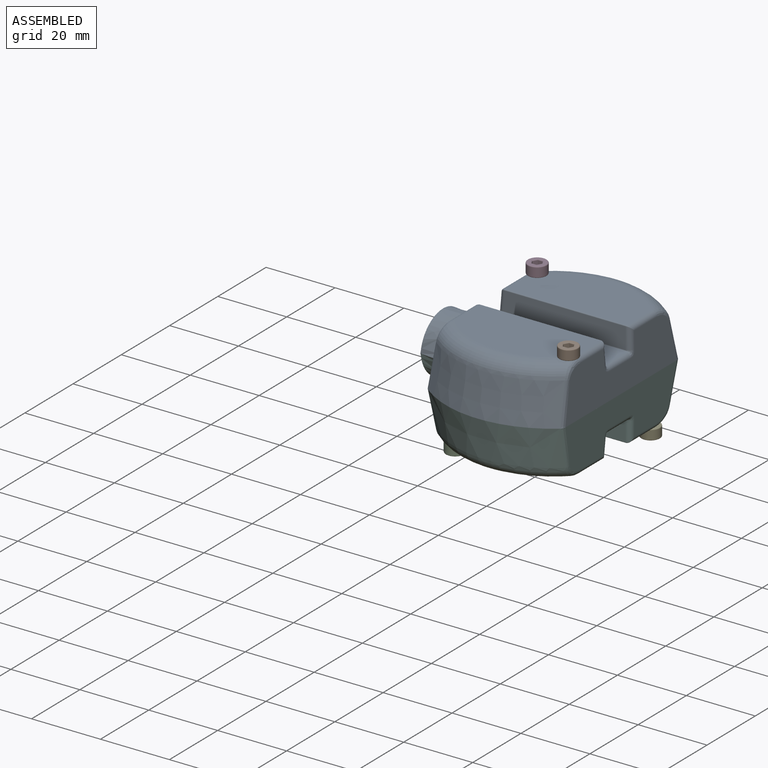
[diagram: assembled view]
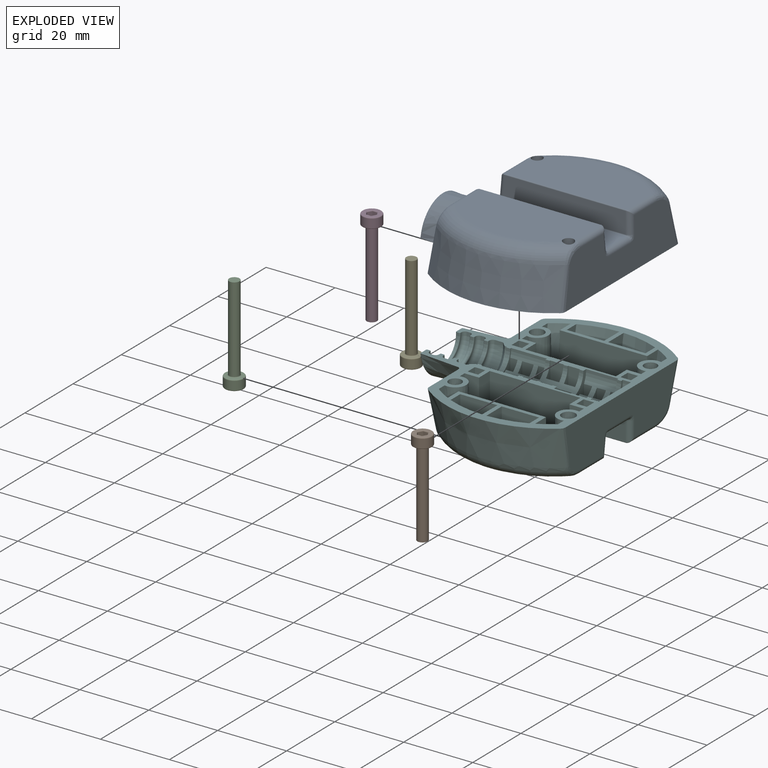
[diagram: exploded view]
GUIDED TOUR — MATED ASSEMBLY (Onshape document 58caafc463b9290f88973a70, AutoMate assembly 58caafc463b9290f88973a70_11cbbfecacfa5ac5eac147a0_29357feba0be54985f3b2f75_default)

This assembly has 6 components, labeled P0..P5 below (a component is one placed occurrence of a part; the same part can appear more than once), held together by 9 mates. A mate is a constraint between two components; its type names the relative motion it leaves free:
  FASTENED — locks the two components together rigidly (no relative motion),
  PLANAR — leaves sliding in the plane through the listed point (normal = the listed direction) and rotation about that normal free,
  SLIDER — leaves translation along the listed axis free.
Axis/direction vectors are unit vectors and 'through' points are millimeter coordinates, both in the assembly's world frame.

MATES
  1. PLANAR "Planar 2": P3 <-> P0, direction (0.000, 0.000, -1.000) through (-61.48, 14.55, 29.47) mm
  2. SLIDER "Slider 4": P5 <-> P2, axis (0.000, 0.000, -1.000) through (-61.48, -19.45, -1.38) mm
  3. PLANAR "Planar 1": P1 <-> P0, direction (0.000, 0.000, -1.000) through (-28.58, -19.45, 29.47) mm
  4. PLANAR "Planar 3": P4 <-> P5, direction (0.000, 0.000, 1.000) through (-28.58, 14.55, -1.38) mm
  5. SLIDER "Slider 3": P5 <-> P4, axis (0.000, 0.000, -1.000) through (-28.58, 14.55, -1.38) mm
  6. PLANAR "Planar 4": P2 <-> P5, direction (0.000, 0.000, 1.000) through (-61.48, -19.45, -1.38) mm
  7. SLIDER "Slider 1": P0 <-> P3, axis (0.000, 0.000, 1.000) through (-61.48, 14.55, 29.47) mm
  8. FASTENED "Fastened 1": P5 <-> P0, direction (0.000, 0.000, -1.000) through (-44.40, 25.99, 14.04) mm
  9. SLIDER "Slider 2": P1 <-> P0, axis (0.000, 0.000, -1.000) through (-28.58, -19.45, 29.47) mm

ASSEMBLY ORDER
  1. P5 — the base component [order verified]
  2. P0 [order verified]
  3. P2 [order verified]
  4. P3 [order verified]
  5. P4 [order verified]
  6. P1 [order verified]
Order-tag legend:
  [order verified] — this step's position reverses a verified removal order: the component was checked to insert without passing through the ones already placed.

Of the 6 components, 4 carry the full construction recipe — the FeatureScript program that regenerates the part's solid from scratch; the rest are supplied as boundary geometry only.
Each toured component is shown spotlighted twice — in the assembled view, then in the exploded view, where a leader line traces a displaced component back to its assembled socket (saturated green if recipe-attached, orange if geometry-only; every other component desaturated gray) — followed by its recipe or geometry summary and the mates that hold it.
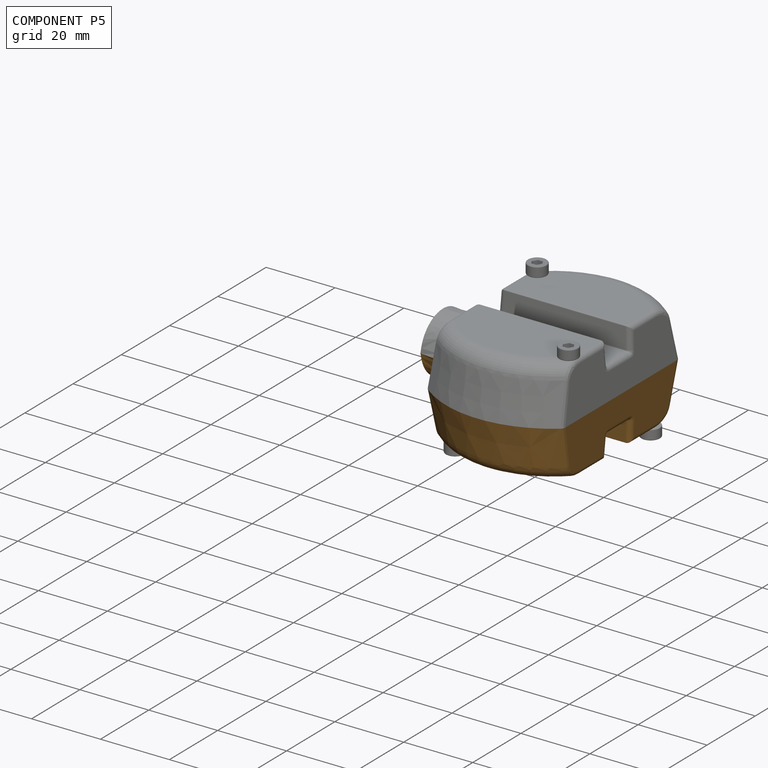
[diagram: component P5 — assembled]
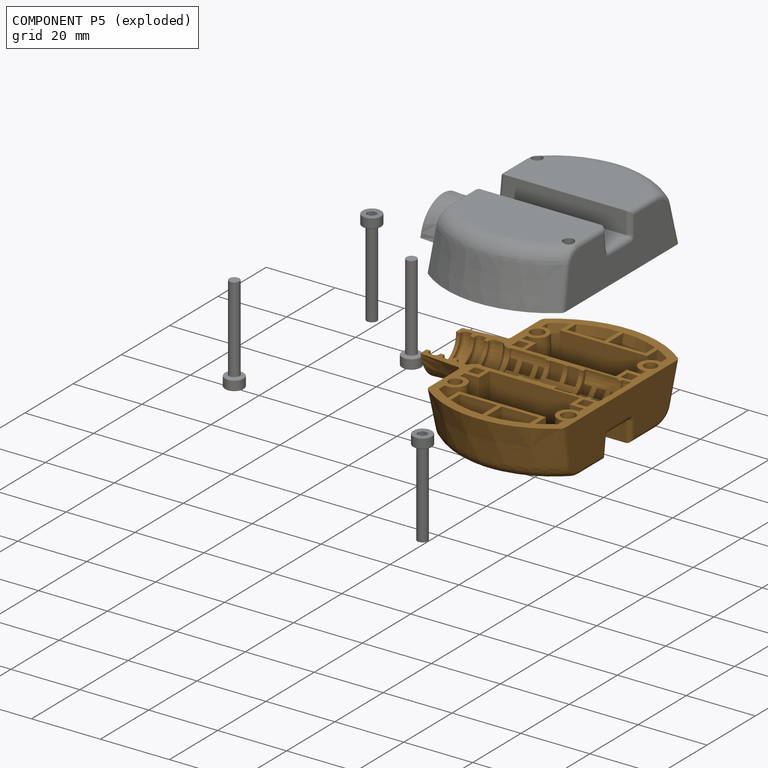
[diagram: component P5 — exploded]
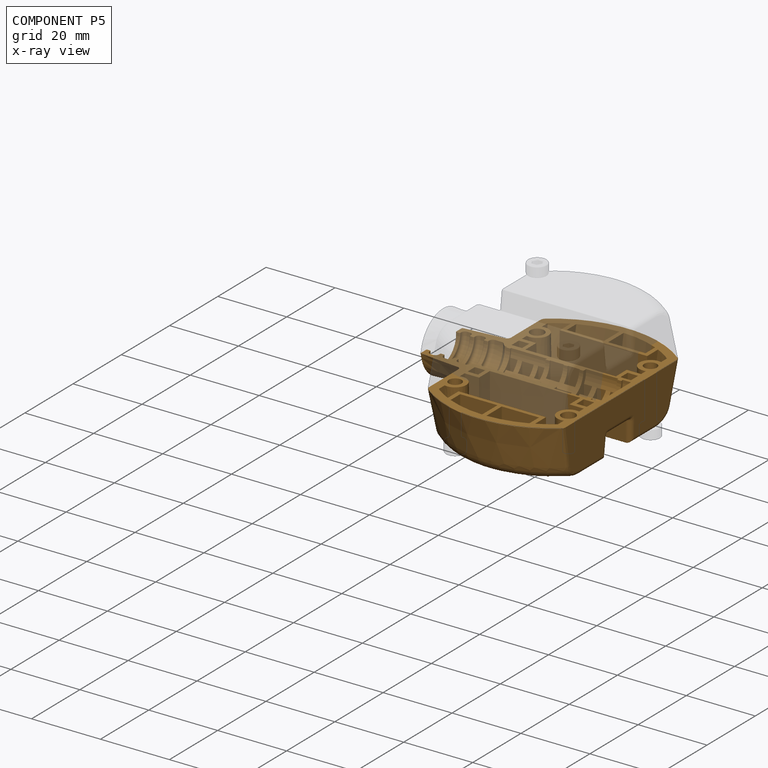
[diagram: component P5 — x-ray view]
COMPONENT P5 — geometry summary (no construction recipe available for this part):
  bounding box: 62.4 x 55.9 x 35.9 mm
  B-rep topology: 1 solid, 333 faces, 1830 edges
  volume: 13388 mm^3 (11% of its bounding box)
Held by: SLIDER mate "Slider 4" to P2; PLANAR mate "Planar 3" to P4; SLIDER mate "Slider 3" to P4; PLANAR mate "Planar 4" to P2; FASTENED mate "Fastened 1" to P0.
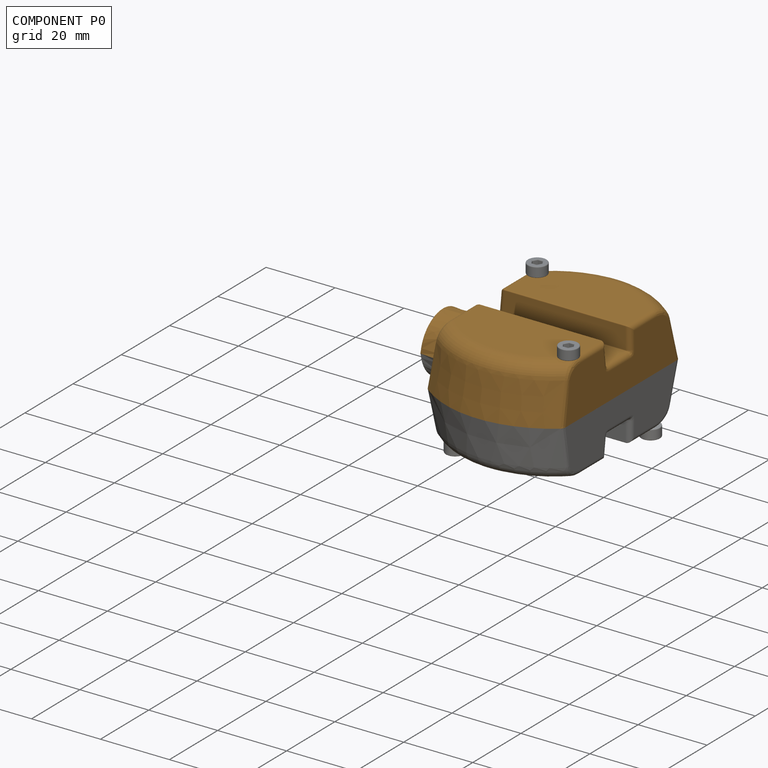
[diagram: component P0 — assembled]
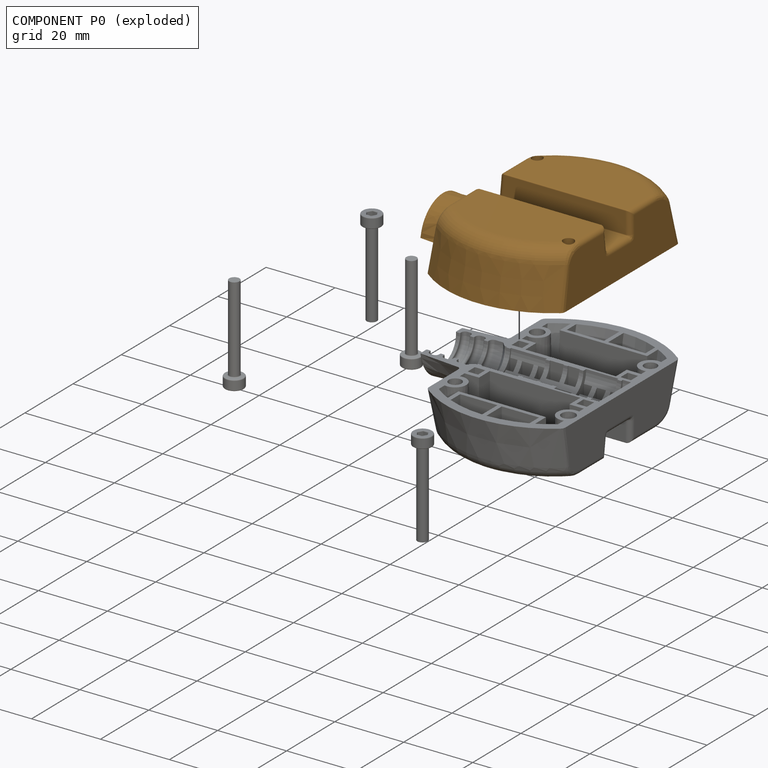
[diagram: component P0 — exploded]
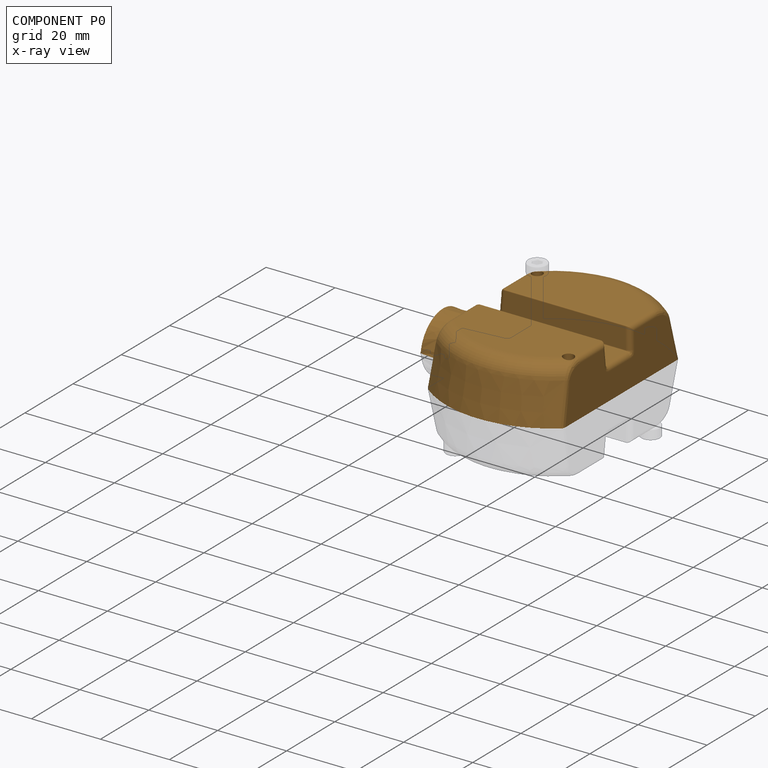
[diagram: component P0 — x-ray view]
COMPONENT P0 — geometry summary (no construction recipe available for this part):
  bounding box: 62.4 x 55.9 x 35.9 mm
  B-rep topology: 1 solid, 333 faces, 1830 edges
  volume: 13388 mm^3 (11% of its bounding box)
Held by: PLANAR mate "Planar 2" to P3; PLANAR mate "Planar 1" to P1; SLIDER mate "Slider 1" to P3; FASTENED mate "Fastened 1" to P5; SLIDER mate "Slider 2" to P1.
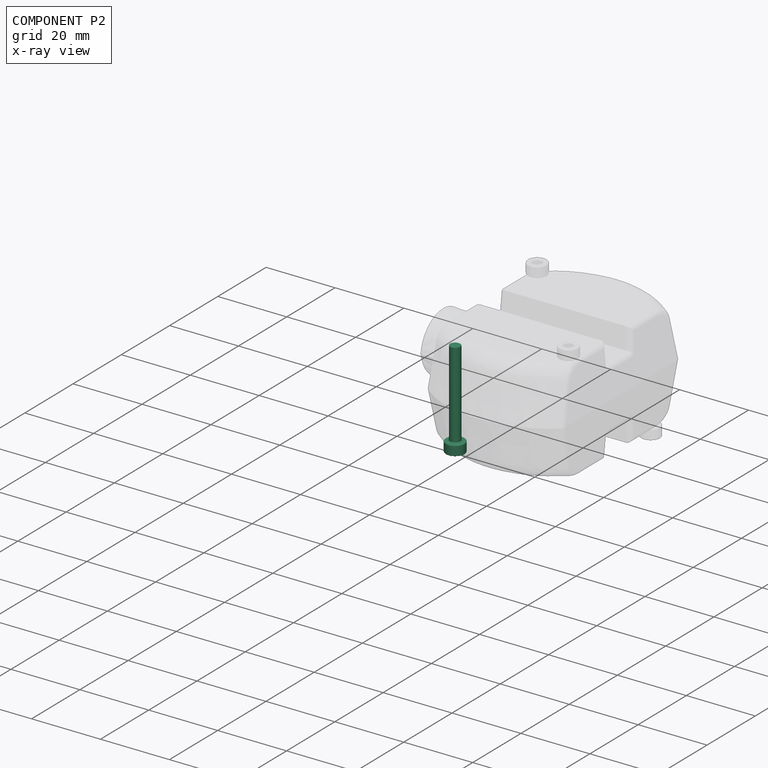
[diagram: component P2 — x-ray view]
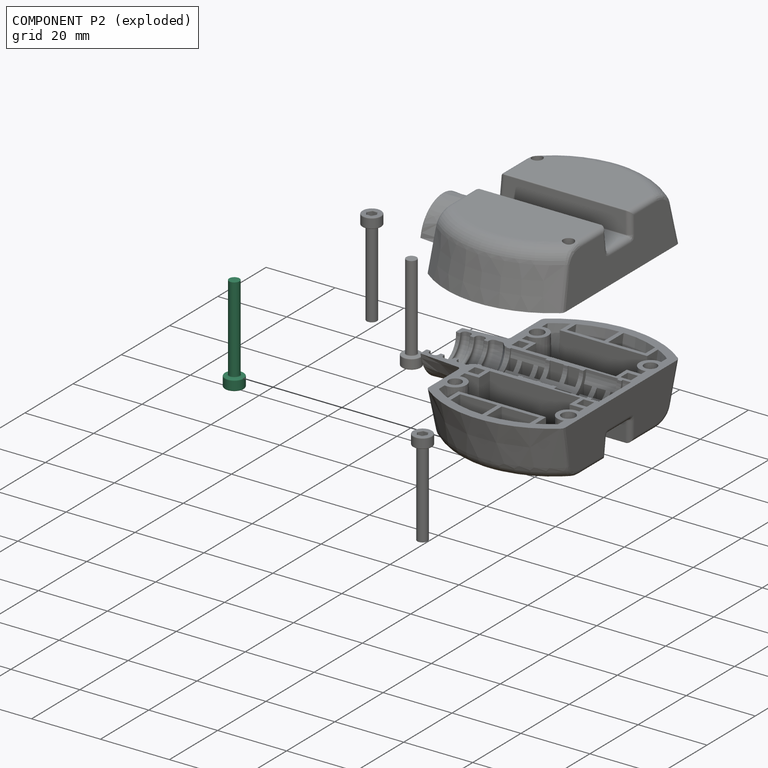
[diagram: component P2 — exploded]
COMPONENT P2 — same part as P1 (CADFS 00624775); its construction recipe is shown at P1.
Held by: SLIDER mate "Slider 4" to P5; PLANAR mate "Planar 4" to P5.
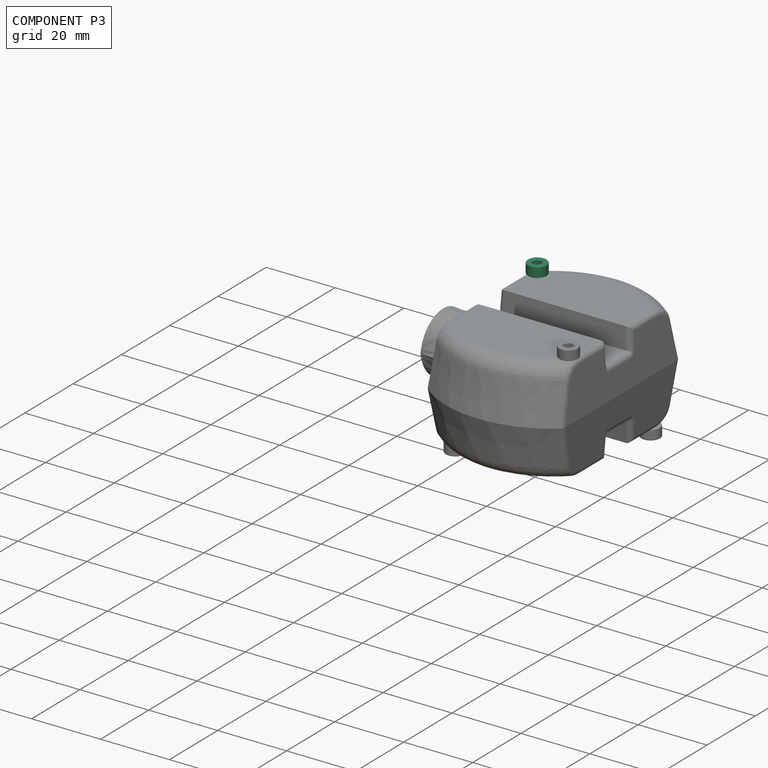
[diagram: component P3 — assembled]
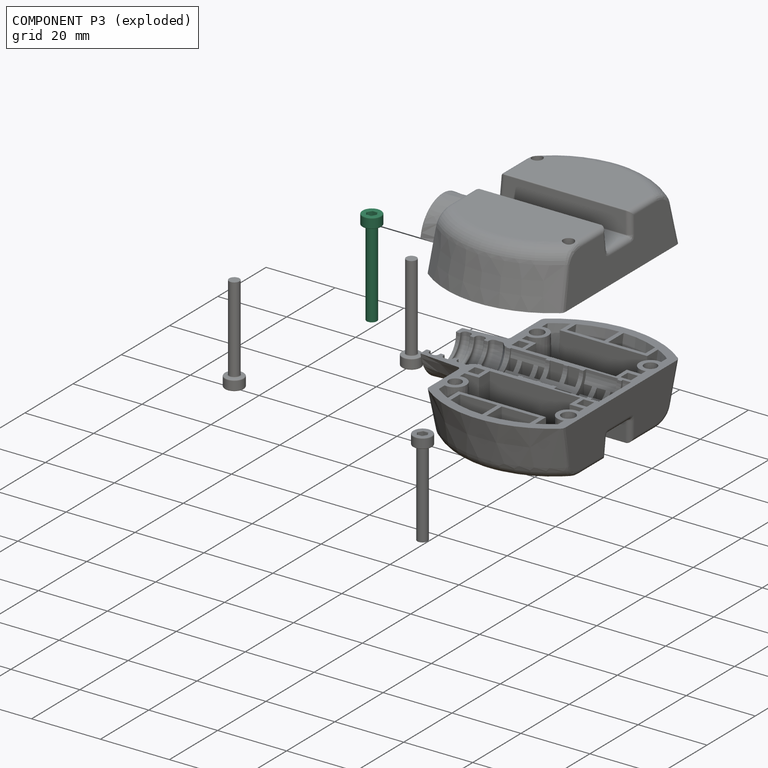
[diagram: component P3 — exploded]
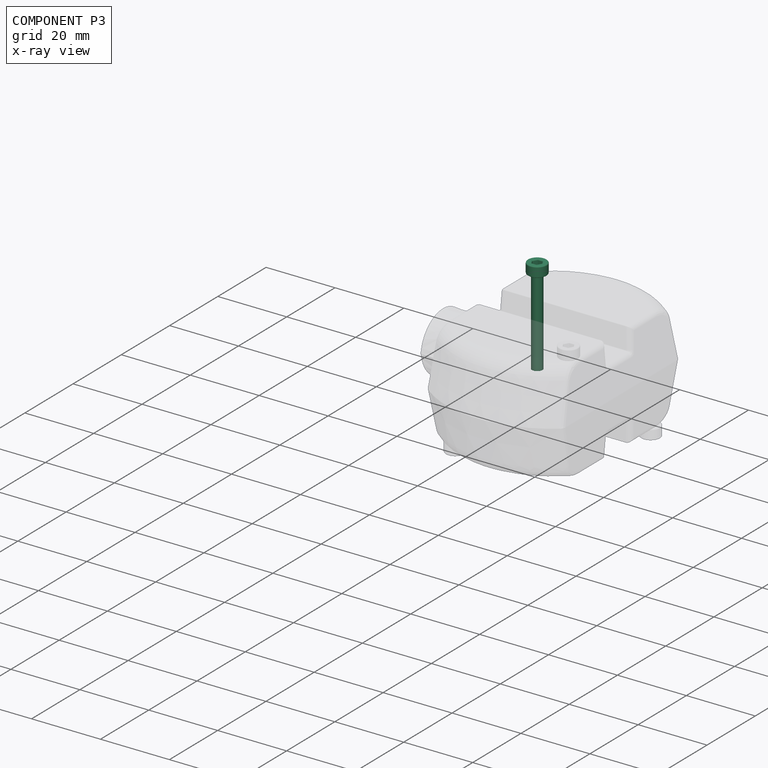
[diagram: component P3 — x-ray view]
COMPONENT P3 — same part as P1 (CADFS 00624775); its construction recipe is shown at P1.
Held by: PLANAR mate "Planar 2" to P0; SLIDER mate "Slider 1" to P0.
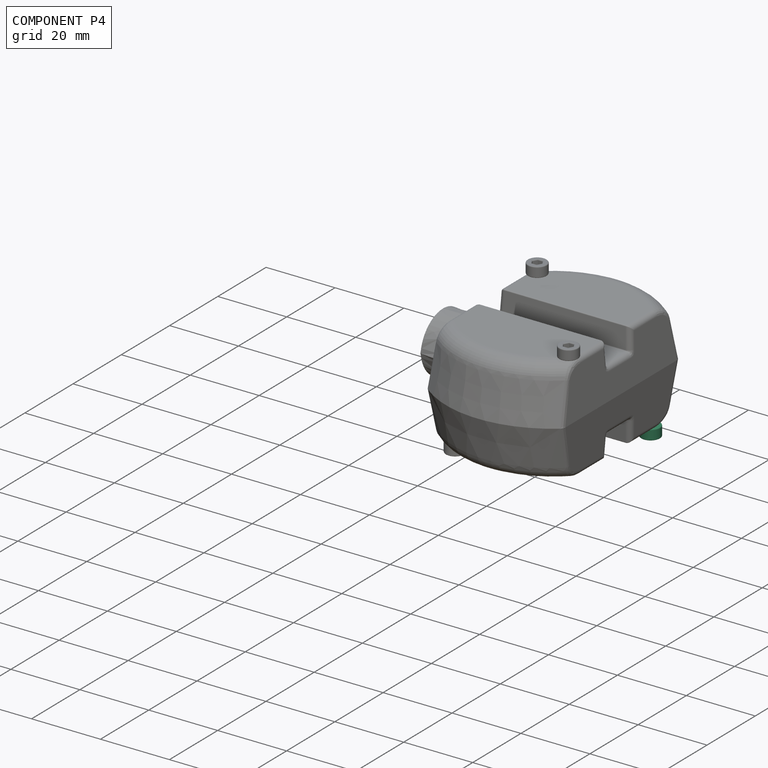
[diagram: component P4 — assembled]
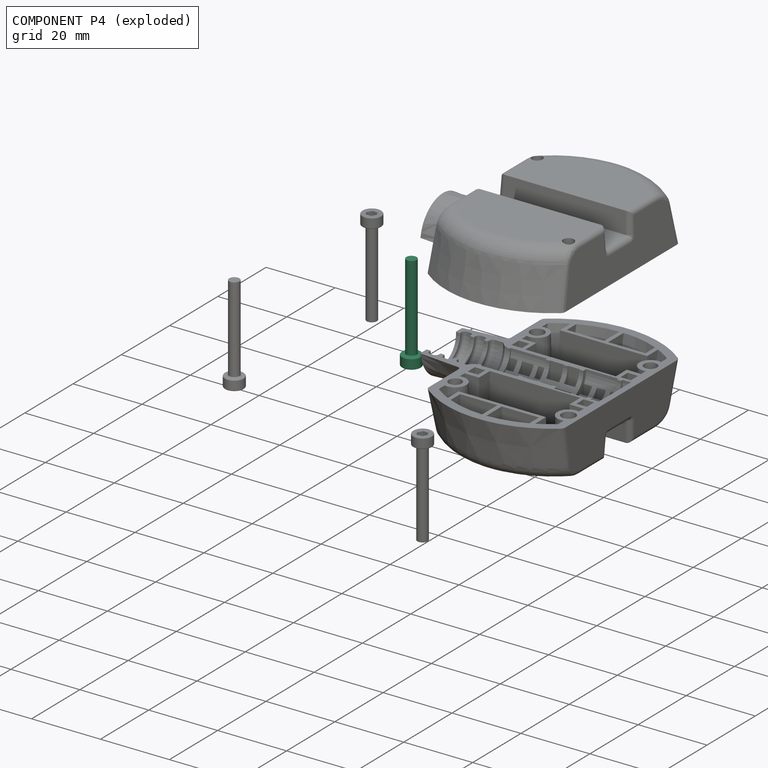
[diagram: component P4 — exploded]
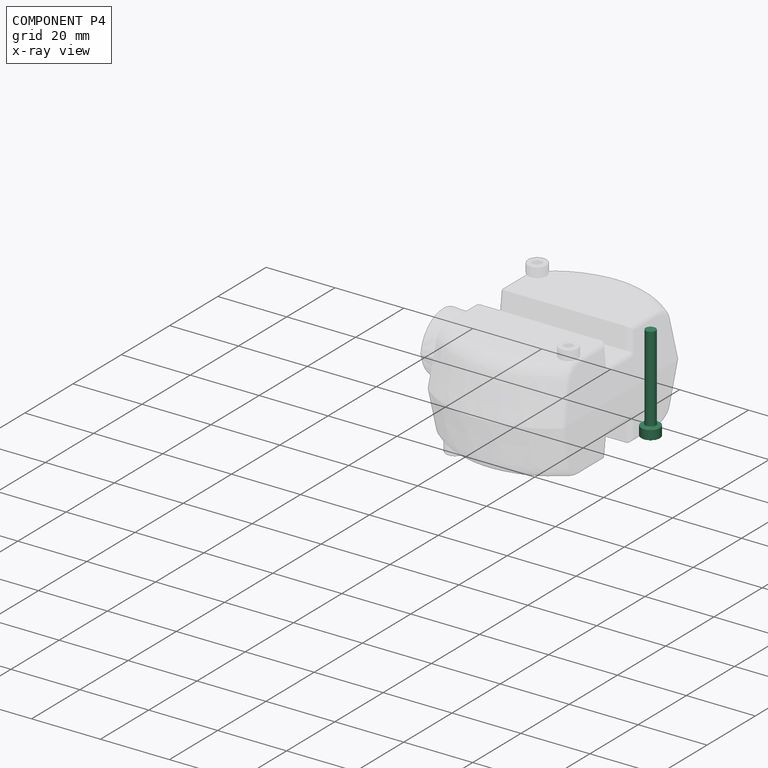
[diagram: component P4 — x-ray view]
COMPONENT P4 — same part as P1 (CADFS 00624775); its construction recipe is shown at P1.
Held by: PLANAR mate "Planar 3" to P5; SLIDER mate "Slider 3" to P5.
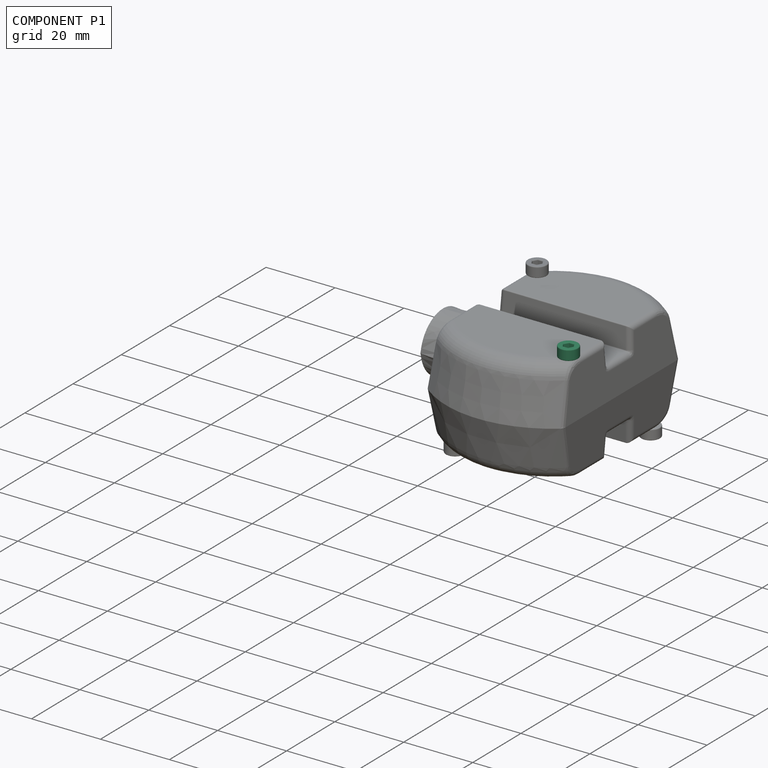
[diagram: component P1 — assembled]
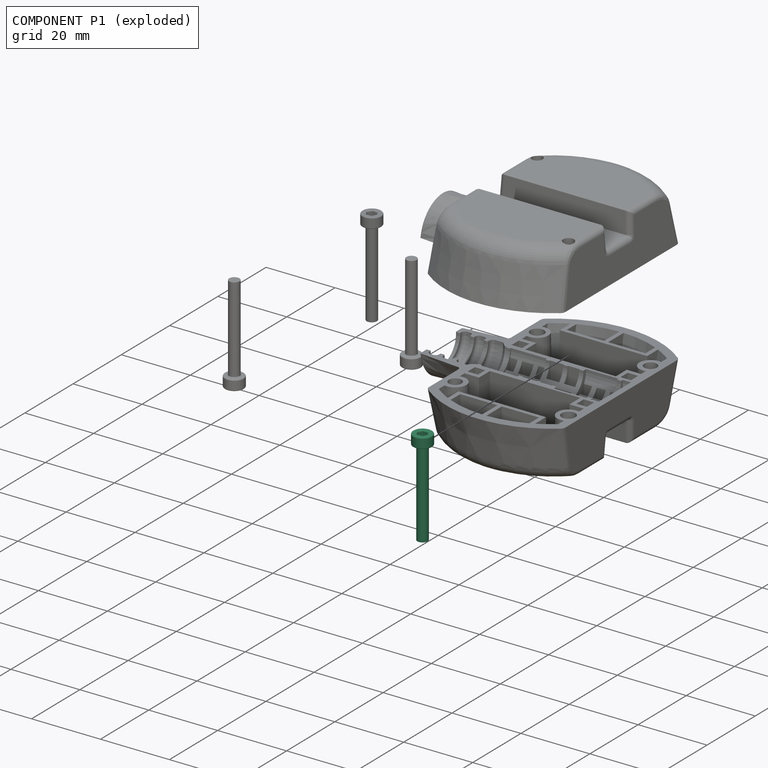
[diagram: component P1 — exploded]
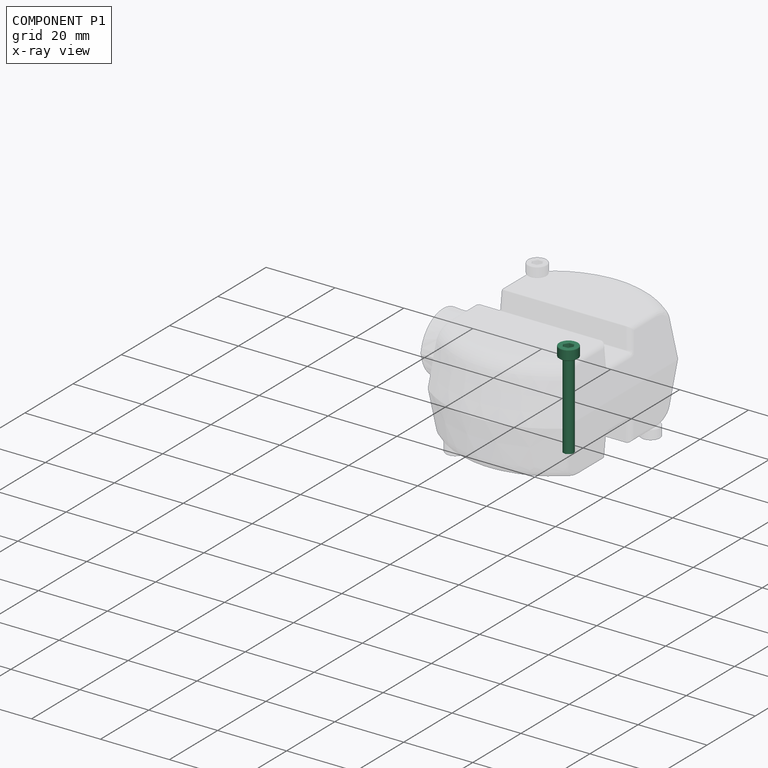
[diagram: component P1 — x-ray view]
COMPONENT P1 — recipe-attached (CADFS 00624775, mesh-verified: the recipe's output STEP matches this component's geometry to below the mesh-comparison resolution (tessellation chordal tolerance ~0.0436 mm)).
Held by: PLANAR mate "Planar 1" to P0; SLIDER mate "Slider 2" to P0.
Construction recipe (FeatureScript — the CAD program that rebuilds this solid; sketch coordinates are in the units given by the * unit suffixes, e.g. mm):

FeatureScript 1511;
import(path : "onshape/std/geometry.fs", version : "1511.0");
import(path : "onshape/std/common.fs", version : "1511.0");
const mm = millimeter;
const VERTEX = EntityType.VERTEX;
const EDGE = EntityType.EDGE;
const FACE = EntityType.FACE;
const BODY = EntityType.BODY;
function v(x, y){return vector(x, y);}
function OD(order){return orderDisambiguation(order);}
function OSD(set){return originalSetDisambiguation(set);}
function TD(topology){return topologyDisambiguation(topology);}
function TDD(query){return trueDependencyDisambiguation(query);}
function sQuery(a, b, c) {return sketchEntityQuery(a, b, c);}

annotation { "Feature Type Name" : "Feature", "Feature Type Description" : "" }
export const myFeature = defineFeature(function(context is Context, id is Id, definition is map)
    precondition{}
    {
        {
            var Q0;
            Q0=qCreatedBy(makeId("Top.planeOp"),FACE);
            var sketch = newSketch(context, id + "F0", { "sketchPlane" : qUnion([Q0])});
            skCircle(sketch, "E0", {"center": v(0, 0) * mm, "radius": 2.75 * mm});
            skSolve(sketch);
        }
        {
            var Q0;
            Q0 = qSketchRegion(id + "F0", true);
            extrude(context, id + "F1", {"entities" : qUnion([Q0]), "oppositeDirection" : true, "depth" : 3 * mm, "offsetDistance" : 25 * mm});
        }
        {
            var Q0;
            Q0=makeQuery(id+"F1.opExtrude","CAP_FACE",FACE,{"disambiguationData":[OSD([sQuery(id+"F0.wireOp",EDGE,"E0")])],"isStart":false});
            var sketch = newSketch(context, id + "F2", { "sketchPlane" : qUnion([Q0])});
            skCircle(sketch, "E1", {"center": v(0, 0) * mm, "radius": 1.5 * mm});
            skSolve(sketch);
        }
        {
            var Q0;
            Q0 = qSketchRegion(id + "F2", true);
            extrude(context, id + "F3", {"entities" : qUnion([Q0]), "operationType" : NewBodyOperationType.ADD, "depth" : 25 * mm, "offsetDistance" : 25 * mm});
        }
        {
            var Q0;
            Q0=makeQuery(id+"F1.opExtrude","CAP_FACE",FACE,{"disambiguationData":[OSD([sQuery(id+"F0.wireOp",EDGE,"E0")])],"isStart":true});
            var sketch = newSketch(context, id + "F4", { "sketchPlane" : qUnion([Q0])});
            skCircle(sketch, "E2.cCircle", {"center": v(0, 0) * mm, "radius": 1.25 * mm, "construction": true});
            skLineSegment(sketch, "E2.0", {"start": v(-0.72, 1.25) * mm, "end": v(0.72, 1.25) * mm});
            skLineSegment(sketch, "E2.1", {"start": v(0.72, 1.25) * mm, "end": v(1.44, 0) * mm});
            skLineSegment(sketch, "E2.2", {"start": v(1.44, 0) * mm, "end": v(0.72, -1.25) * mm});
            skLineSegment(sketch, "E2.3", {"start": v(0.72, -1.25) * mm, "end": v(-0.72, -1.25) * mm});
            skLineSegment(sketch, "E2.4", {"start": v(-0.72, -1.25) * mm, "end": v(-1.44, 0) * mm});
            skLineSegment(sketch, "E2.5", {"start": v(-1.44, 0) * mm, "end": v(-0.72, 1.25) * mm});
            skPoint(sketch, "E2.0.midPoint", {"position": v(0, 1.25) * mm});
            skSolve(sketch);
        }
        {
            var Q0;
            Q0 = qSketchRegion(id + "F4", true);
            extrude(context, id + "F5", {"entities" : qUnion([Q0]), "operationType" : NewBodyOperationType.REMOVE, "oppositeDirection" : true, "depth" : 2 * mm, "offsetDistance" : 25 * mm});
        }
        {
            var Q0;
            Q0=makeQuery(id+"F1.opExtrude","CAP_FACE",FACE,{"disambiguationData":[OSD([sQuery(id+"F0.wireOp",EDGE,"E0")])],"isStart":true});
            var Q1;
            Q1=makeQuery(id+"F1.opExtrude","CAP_FACE",FACE,{"disambiguationData":[OSD([sQuery(id+"F0.wireOp",EDGE,"E0")])],"isStart":false});
            fillet(context, id + "F6", {"entities" : qUnion([Q0, Q1]), "radius" : .25 * mm, "tangentPropagation" : true, "allowEdgeOverflow" : false});
        }
    });
PROVENANCE & LICENSES
Assembly (occurrences, transforms, mates, per-part STEP geometry): AutoMate dataset, Zenodo record 7776208, CC0.
Construction recipes: CADFS (HuggingFace VladPyatov/CADFS, CC-BY-4.0, layered over the ABC dataset), FeatureScript reconstruction programs keyed by ABC model id.
Join: ABC meta listings map ABC model id -> Onshape documentId; within a shared document, parts are matched by geometric signature (bounding-box dims + volume at 0.1% relative tolerance, exact B-rep face/solid counts).
Verification: 4 of this assembly's 6 components carry a recipe attachment, and every attachment is mesh-verified: the CADFS STEP and the AutoMate member STEP were compared as meshes in their shared local frame (symmetric sampled-point-to-mesh distance); worst across the 4 attachments: below the mesh-comparison resolution (tessellation chordal tolerance ~0.0436 mm) on a 29 mm part.
Renders: orthographic iso camera (az 35 / el 25); the floor grid conveys scale (grid pitch printed in each image; no ruler). In the exploded view each component is displaced by its stored offset vector: the offsets alone carry the explosion direction (mate normal/axis signs are not orientation cues and do not encode it), and separation distances are assigned per mate-chain, not proportionally to assembly-order depth.
